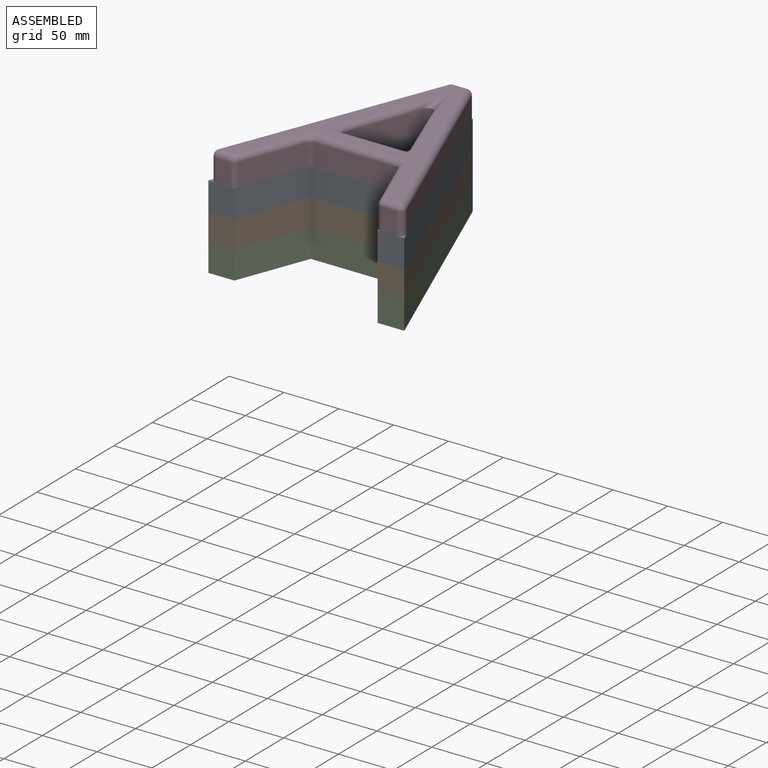
[diagram: assembled view]
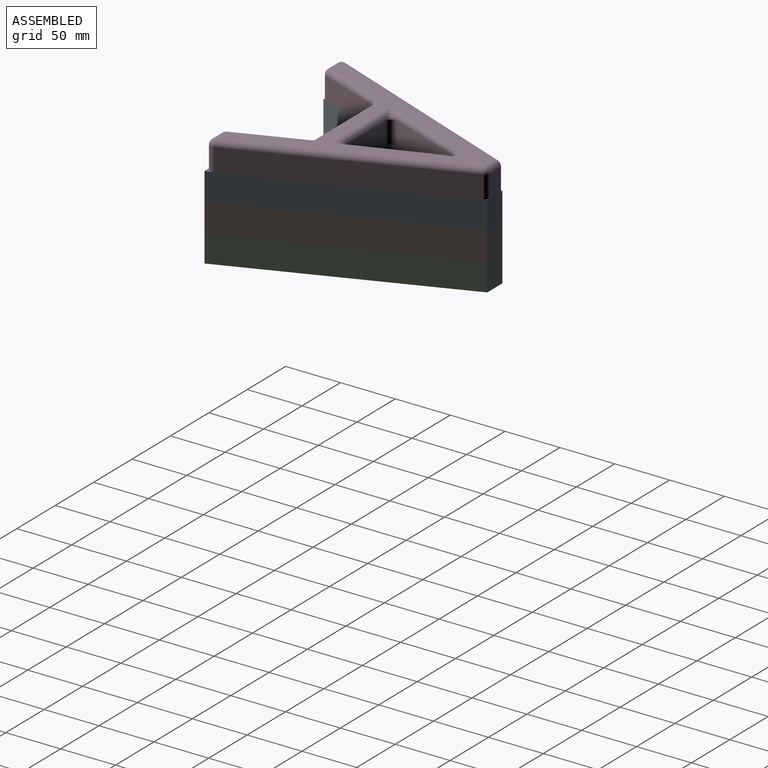
[diagram: assembled view, second angle]
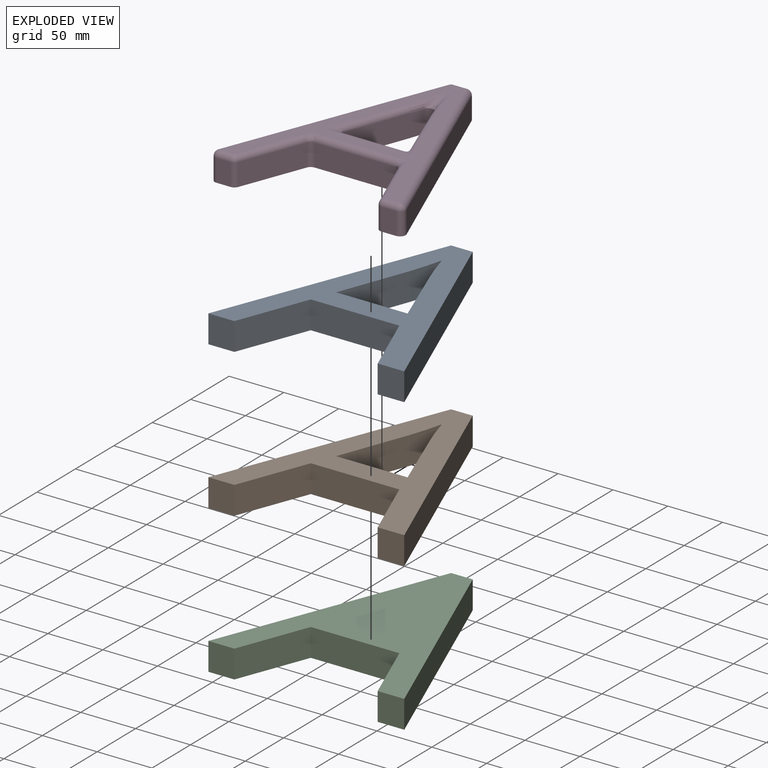
[diagram: exploded view]
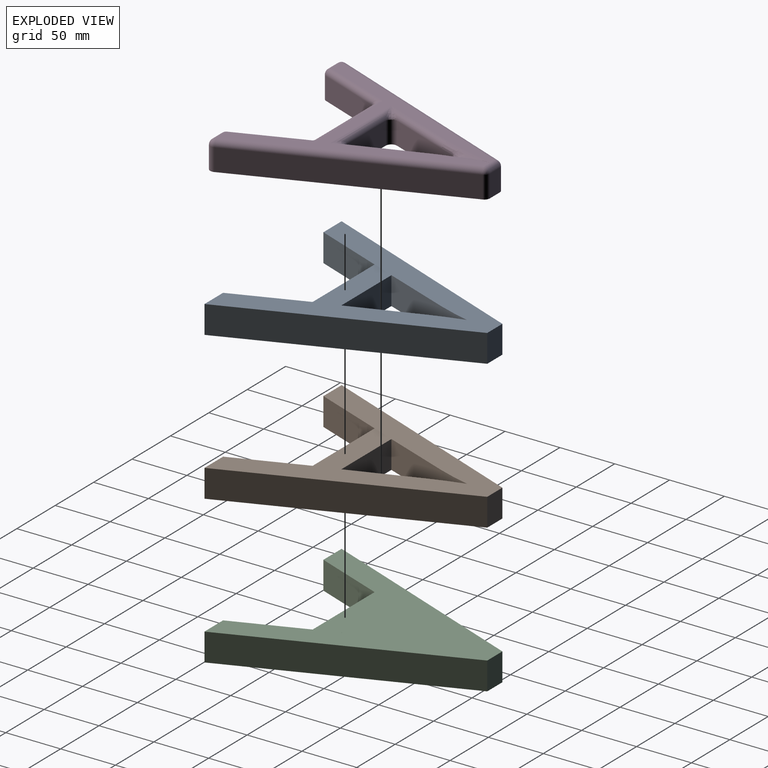
[diagram: exploded view, second angle]
ASSEMBLY  parts=4 mates=3
PART A: 15 faces, bbox 178.6x202.3x25.4 mm
  f0: plane 25.4x24.25mm, normal (0,-1,0), area 616mm2, adj f1,f12,f13,f14
  f1: plane 202.32x79.24mm, normal (0.93,0.36,0), area 5519mm2, adj f0,f2,f13,f14
  f2: plane 25.4x19.71mm, normal (0,1,0), area 500.7mm2, adj f1,f3,f13,f14
  f3: plane 202.32x79.64mm, normal (-0.93,0.37,0), area 5522.7mm2, adj f2,f4,f13,f14
  f4: plane 25.4x23.72mm, normal (0,-1,0), area 602.6mm2, adj f3,f5,f13,f14
  f5: plane 64.07x25.4mm, normal (0.93,-0.36,0), area 1745mm2, adj f4,f6,f13,f14
  f6: plane 80.74x25.4mm, normal (0,-1,0), area 2050.8mm2, adj f5,f12,f13,f14
  f7: plane 65.18x25.4mm, normal (0,1,0), area 1655.5mm2, adj f8,f11,f13,f14
  f8: plane 62.44x25.4mm, normal (0.94,-0.35,0), area 1696.2mm2, adj f7,f9,f13,f14
  f9: extruded ~29.06x25.4mm, area 770.8mm2, adj f8,f10,f13,f14
  f10: extruded ~29.06x25.4mm, area 775.6mm2, adj f9,f11,f13,f14
  f11: plane 62.44x25.4mm, normal (-0.94,-0.35,0), area 1694.3mm2, adj f7,f10,f13,f14
  f12: plane 64.07x25.4mm, normal (-0.93,-0.36,0), area 1747.8mm2, adj f0,f6,f13,f14
  f13: plane 202.32x178.59mm, normal (0,0,1), area 10445mm2, adj f0,f1,f2,f3,f4,f5,f6,f7
  f14: plane 202.32x178.59mm, normal (0,0,-1), area 10445mm2, adj f0,f1,f2,f3,f4,f5,f6,f7
PART B: same geometry as A
PART C: 13 faces, bbox 178.6x202.3x25.4 mm
  f0: plane 25.4x24.25mm, normal (0,-1,0), area 616mm2, adj f1,f9,f10,f11
  f1: plane 202.32x79.24mm, normal (0.93,0.36,0), area 5519mm2, adj f0,f2,f10,f11
  f2: plane 25.4x19.71mm, normal (0,1,0), area 500.7mm2, adj f1,f3,f10,f11
  f3: plane 202.32x79.64mm, normal (-0.93,0.37,0), area 5522.7mm2, adj f2,f4,f10,f11
  f4: plane 25.4x23.72mm, normal (0,-1,0), area 602.6mm2, adj f3,f5,f10,f11
  f5: plane 64.07x25.4mm, normal (0.93,-0.36,0), area 1745mm2, adj f4,f6,f10,f11
  f6: plane 80.74x25.4mm, normal (0,-1,0), area 2050.8mm2, adj f5,f9,f10,f11
  f7: plane 25.4x0.73mm, normal (-0.94,-0.35,0), area 19.8mm2, adj f8,f10,f11,f12
  f8: plane 25.4x0.27mm, normal (0,1,0), area 7mm2, adj f7,f10,f11,f12
  f9: plane 64.07x25.4mm, normal (-0.93,-0.36,0), area 1747.8mm2, adj f0,f6,f10,f11
  f10: plane 202.32x178.59mm, normal (0,0,1), area 13289.1mm2, adj f0,f1,f2,f3,f4,f5,f6,f7
  f11: plane 202.32x178.59mm, normal (0,0,-1), area 13289.1mm2, adj f0,f1,f2,f3,f4,f5,f6,f7
  f12: plane 25.4x0.73mm, normal (1,0,0), area 18.5mm2, adj f7,f8,f10,f11
PART D: 51 faces, bbox 173.8x205.9x25.4 mm
  f0: bspline ~15.23x9.68mm, area 42.8mm2, adj f29,f31,f35,f36
  f1: plane 20.32x13.34mm, normal (0,-1,0), area 271.1mm2, adj f15,f25,f27,f49
  f2: plane 192.16x75.26mm, normal (0.93,0.36,0), area 4193.5mm2, adj f15,f16,f17,f27
  f3: plane 20.32x12.79mm, normal (0,1,0), area 259.8mm2, adj f15,f17,f19,f47
  f4: plane 192.16x75.64mm, normal (-0.93,0.37,0), area 4196.3mm2, adj f15,f20,f39,f47
  f5: plane 20.32x12.78mm, normal (0,-1,0), area 259.8mm2, adj f15,f21,f39,f41
  f6: plane 57.58x22.27mm, normal (0.93,-0.36,0), area 1254.5mm2, adj f15,f22,f41,f43
  f7: plane 73.79x20.32mm, normal (0,-1,0), area 1499.5mm2, adj f15,f23,f43,f45
  f8: plane 50.48x20.32mm, normal (0,1,0), area 1025.8mm2, adj f15,f30,f33,f37
  f9: plane 55.56x21.07mm, normal (0.94,-0.35,0), area 1207.4mm2, adj f10,f15,f28,f33
  f10: extruded ~20.32x12.15mm, area 260.3mm2, adj f9,f15,f29,f35
  f11: extruded ~20.32x12.21mm, area 262.9mm2, adj f12,f15,f31,f35
  f12: plane 55.58x20.88mm, normal (-0.94,-0.35,0), area 1206.4mm2, adj f11,f15,f32,f37
  f13: plane 57.62x22.56mm, normal (-0.93,-0.36,0), area 1257.4mm2, adj f15,f24,f45,f49
  f14: plane 192.16x163.69mm, normal (0,0,1), area 5403.4mm2, adj f16,f19,f20,f21,f22,f23,f24,f25
  f15: plane 202.32x173.85mm, normal (0,0,-1), area 10493.6mm2, adj f1,f2,f3,f4,f5,f6,f7,f8
  f16: cylinder r=5.08mm len=194.01mm, axis (0.36,-0.93,0), area 1646.8mm2, adj f2,f14,f18,f26
  f17: cylinder r=5.08mm len=20.32mm, axis (0,0,-1), area 123.6mm2, adj f2,f3,f15,f18
  f18: sphere r=5.08mm, area 21.9mm2, adj f16,f17,f19
  f19: cylinder r=5.08mm len=12.79mm, axis (1,0,0), area 102mm2, adj f3,f14,f18,f48
  f20: cylinder r=5.08mm len=194.02mm, axis (0.37,0.93,0), area 1647.9mm2, adj f4,f14,f40,f48
  f21: cylinder r=5.08mm len=12.78mm, axis (-1,0,0), area 102mm2, adj f5,f14,f40,f42
  f22: cylinder r=5.08mm len=65.91mm, axis (-0.36,-0.93,0), area 520.4mm2, adj f6,f14,f42,f44
  f23: cylinder r=5.08mm len=87.69mm, axis (-1,0,0), area 644.3mm2, adj f7,f14,f44,f46
  f24: cylinder r=5.08mm len=65.93mm, axis (-0.36,0.93,0), area 521.4mm2, adj f13,f14,f46,f50
  f25: cylinder r=5.08mm len=13.34mm, axis (-1,0,0), area 106.5mm2, adj f1,f14,f26,f50
  f26: sphere r=5.08mm, area 54.4mm2, adj f16,f25,f27
  f27: cylinder r=5.08mm len=20.32mm, axis (0,0,-1), area 200.7mm2, adj f1,f2,f15,f26
  f28: cylinder r=5.08mm len=71.12mm, axis (-0.35,-0.94,0), area 532.7mm2, adj f9,f14,f29,f34
  f29: bspline ~64.97x22.32mm, area 215.9mm2, adj f0,f10,f14,f28,f36
  f30: cylinder r=5.08mm len=79.87mm, axis (1,0,0), area 520.1mm2, adj f8,f14,f34,f38
  f31: bspline ~61.04x22.93mm, area 217.5mm2, adj f0,f11,f14,f32,f36
  f32: cylinder r=5.08mm len=71.11mm, axis (-0.35,0.94,0), area 532.3mm2, adj f12,f14,f31,f38
  f33: cylinder r=5.08mm len=20.32mm, axis (0,0,1), area 199.6mm2, adj f8,f9,f15,f34
  f34: bspline ~14.72x11.96mm, area 36.1mm2, adj f28,f30,f33
  f35: cylinder r=5.08mm len=20.32mm, axis (0,0,-1), area 260.7mm2, adj f0,f10,f11,f15
  f36: bspline ~33.31x8.46mm, area 88.7mm2, adj f0,f29,f31
  f37: cylinder r=5.08mm len=20.32mm, axis (0,0,1), area 199.2mm2, adj f8,f12,f15,f38
  f38: bspline ~14.67x11.95mm, area 36mm2, adj f30,f32,f37
  f39: cylinder r=5.08mm len=20.32mm, axis (0,0,-1), area 200.9mm2, adj f4,f5,f15,f40
  f40: sphere r=5.08mm, area 50.2mm2, adj f20,f21,f39
  f41: cylinder r=5.08mm len=20.32mm, axis (0,0,-1), area 124mm2, adj f5,f6,f15,f42
  f42: sphere r=5.08mm, area 31mm2, adj f21,f22,f41
  f43: cylinder r=5.08mm len=20.32mm, axis (0,0,1), area 124mm2, adj f6,f7,f15,f44
  f44: bspline ~8.33x6.96mm, area 20.2mm2, adj f22,f23,f43
  f45: cylinder r=5.08mm len=20.32mm, axis (0,0,1), area 123.6mm2, adj f7,f13,f15,f46
  f46: bspline ~8.31x6.93mm, area 20.1mm2, adj f23,f24,f45
  f47: cylinder r=5.08mm len=20.32mm, axis (0,0,-1), area 123.4mm2, adj f3,f4,f15,f48
  f48: sphere r=5.08mm, area 45.6mm2, adj f19,f20,f47
  f49: cylinder r=5.08mm len=20.32mm, axis (0,0,-1), area 123.6mm2, adj f1,f13,f15,f50
  f50: sphere r=5.08mm, area 30.9mm2, adj f24,f25,f49
PLACE A t=(45.49,-80.39,107.72)mm
PLACE B t=(45.49,-80.39,82.32)mm
PLACE C t=(45.49,-80.39,56.92)mm
PLACE D t=(45.49,-80.39,133.12)mm
MATE fastened A.f14 <-> B.f13  axis (0,0,-1) through (-68.22,108.07,107.72)mm
MATE fastened B.f14 <-> C.f10  axis (0,0,-1) through (-68.22,108.07,82.32)mm
MATE fastened D.f15 <-> A.f13  axis (0,0,-1) through (-68.22,108.07,133.12)mm
